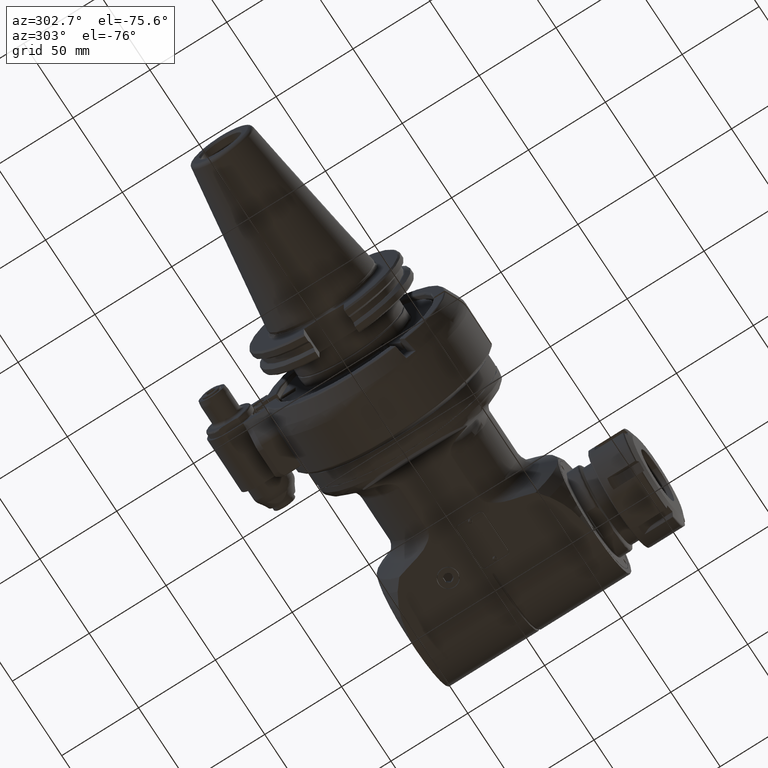
[diagram: clean part render]
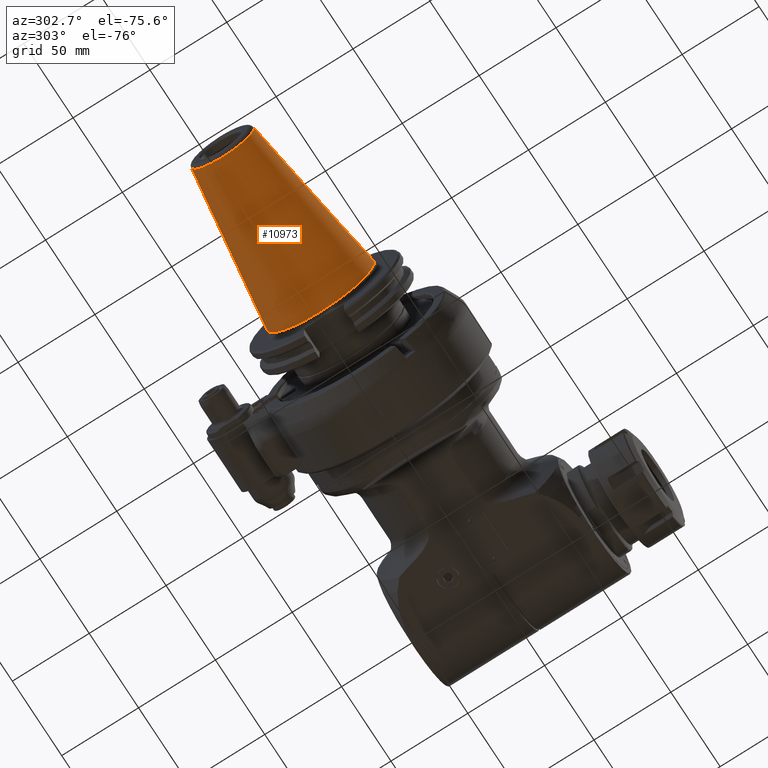
[diagram: same view with one face highlighted and labeled with its STEP entity id]
A machine part, auxiliary view. The second image highlights one B-rep face of the part: STEP entity #10973.
In plain terms, the highlighted conical surface has half-angle 8.297 deg.
Its self-contained STEP definition (entity closure, byte-faithful):
#344=CONICAL_SURFACE('',#11728,27.67265681028,0.144812411498922);
#518=LINE('',#16910,#1259);
#1259=VECTOR('',#13244,27.67265681028);
#2319=FACE_OUTER_BOUND('',#3011,.T.);
#3011=EDGE_LOOP('',(#7366,#7367,#7368,#7369,#7370,#7371));
#3787=CIRCLE('',#11725,20.42031362057);
#3789=CIRCLE('',#11727,20.42031362057);
#3790=CIRCLE('',#11729,34.925);
#3791=CIRCLE('',#11730,34.925);
#4460=VERTEX_POINT('',#16901);
#4461=VERTEX_POINT('',#16902);
#4462=VERTEX_POINT('',#16907);
#4463=VERTEX_POINT('',#16908);
#5590=EDGE_CURVE('',#4460,#4461,#3787,.T.);
#5592=EDGE_CURVE('',#4461,#4460,#3789,.T.);
#5593=EDGE_CURVE('',#4462,#4463,#3790,.T.);
#5594=EDGE_CURVE('',#4462,#4460,#518,.T.);
#5595=EDGE_CURVE('',#4463,#4462,#3791,.T.);
#7366=ORIENTED_EDGE('',*,*,#5593,.F.);
#7367=ORIENTED_EDGE('',*,*,#5594,.T.);
#7368=ORIENTED_EDGE('',*,*,#5592,.F.);
#7369=ORIENTED_EDGE('',*,*,#5590,.F.);
#7370=ORIENTED_EDGE('',*,*,#5594,.F.);
#7371=ORIENTED_EDGE('',*,*,#5595,.F.);
#10973=ADVANCED_FACE('',(#2319),#344,.T.);
#11725=AXIS2_PLACEMENT_3D('',#16903,#13234,#13235);
#11727=AXIS2_PLACEMENT_3D('',#16905,#13238,#13239);
#11728=AXIS2_PLACEMENT_3D('',#16906,#13240,#13241);
#11729=AXIS2_PLACEMENT_3D('',#16909,#13242,#13243);
#11730=AXIS2_PLACEMENT_3D('',#16911,#13245,#13246);
#13234=DIRECTION('center_axis',(-1.,0.,0.));
#13235=DIRECTION('ref_axis',(0.,-1.,0.));
#13238=DIRECTION('center_axis',(-1.,0.,0.));
#13239=DIRECTION('ref_axis',(0.,-1.,0.));
#13240=DIRECTION('center_axis',(1.,0.,0.));
#13241=DIRECTION('ref_axis',(0.,0.,-1.));
#13242=DIRECTION('center_axis',(1.,0.,0.));
#13243=DIRECTION('ref_axis',(0.,0.,-1.));
#13244=DIRECTION('',(-0.98953299358046,1.76724869581176E-17,-0.144306807239621));
#13245=DIRECTION('center_axis',(1.,0.,0.));
#13246=DIRECTION('ref_axis',(0.,0.,-1.));
#16901=CARTESIAN_POINT('',(-176.4607667873,0.,20.42031362057));
#16902=CARTESIAN_POINT('',(-176.4607667873,20.42031362057,2.50076717130162E-15));
#16903=CARTESIAN_POINT('Origin',(-176.4607667873,0.,0.));
#16905=CARTESIAN_POINT('Origin',(-176.4607667873,0.,0.));
#16906=CARTESIAN_POINT('Origin',(-126.7303832783,0.,0.));
#16907=CARTESIAN_POINT('',(-76.99999976923,0.,34.925));
#16908=CARTESIAN_POINT('',(-76.9999997692299,-4.27707894602218E-15,-34.9250000000004));
#16909=CARTESIAN_POINT('Origin',(-76.99999976923,0.,0.));
#16910=CARTESIAN_POINT('',(-126.7303832783,-3.38892305866126E-15,27.67265681028));
#16911=CARTESIAN_POINT('Origin',(-76.99999976923,0.,0.));